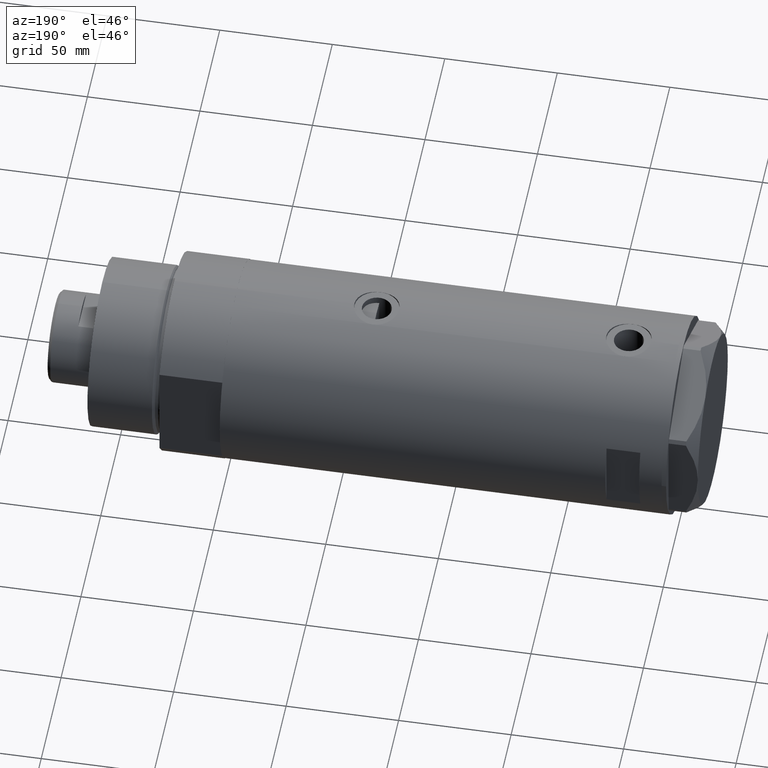
[diagram: clean part render]
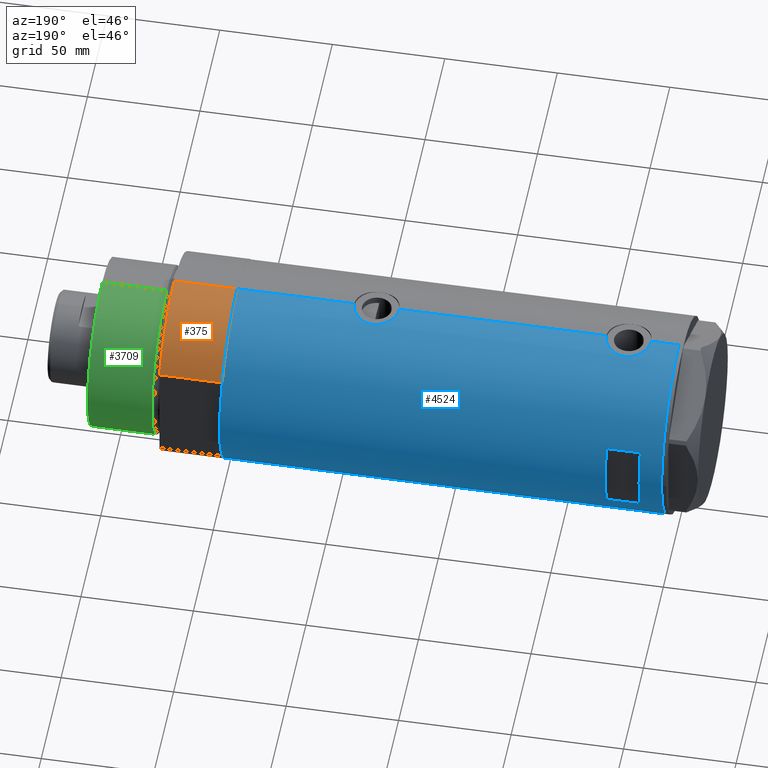
[diagram: same view with three faces highlighted in distinct colors, each labeled with its STEP entity id]
A machine part, auxiliary view with three faces highlighted in distinct colors.
Their STEP definitions:

[orange] entity #375 — the highlighted cylindrical surface (partial cylindrical patch) has radius 44 mm, axis along (-1, -0, 0).
#56 = ORIENTED_EDGE ( 'NONE', *, *, #748, .F. ) ;
#103 = CIRCLE ( 'NONE', #1887, 44.00000000000000000 ) ;
#125 = VERTEX_POINT ( 'NONE', #2113 ) ;
#271 = CIRCLE ( 'NONE', #3701, 44.00000000000000000 ) ;
#313 = LINE ( 'NONE', #2571, #2596 ) ;
#375 = ADVANCED_FACE ( 'NONE', ( #1312 ), #2411, .T. ) ;
#496 = DIRECTION ( 'NONE',  ( 0.000000000000000000, 0.000000000000000000, 1.000000000000000000 ) ) ;
#709 = CARTESIAN_POINT ( 'NONE',  ( -44.00000000000000000, 0.000000000000000000, 27.89999999999999858 ) ) ;
#748 = EDGE_CURVE ( 'NONE', #3027, #4065, #4559, .T. ) ;
#766 = CARTESIAN_POINT ( 'NONE',  ( 0.000000000000000000, 0.000000000000000000, 27.89999999999999858 ) ) ;
#1312 = FACE_OUTER_BOUND ( 'NONE', #2145, .T. ) ;
#1558 = AXIS2_PLACEMENT_3D ( 'NONE', #3574, #4705, #2827 ) ;
#1783 = EDGE_CURVE ( 'NONE', #3677, #125, #313, .T. ) ;
#1850 = DIRECTION ( 'NONE',  ( 1.000000000000000000, 0.000000000000000000, 0.000000000000000000 ) ) ;
#1887 = AXIS2_PLACEMENT_3D ( 'NONE', #3843, #496, #3874 ) ;
#1980 = CARTESIAN_POINT ( 'NONE',  ( -23.01629857296780557, 37.50000000000000000, 0.000000000000000000 ) ) ;
#2113 = CARTESIAN_POINT ( 'NONE',  ( -44.00000000000000000, 0.000000000000000000, 0.000000000000000000 ) ) ;
#2145 = EDGE_LOOP ( 'NONE', ( #3860, #2488, #56, #2441 ) ) ;
#2411 = CYLINDRICAL_SURFACE ( 'NONE', #1558, 44.00000000000000000 ) ;
#2441 = ORIENTED_EDGE ( 'NONE', *, *, #4647, .T. ) ;
#2488 = ORIENTED_EDGE ( 'NONE', *, *, #4479, .F. ) ;
#2571 = CARTESIAN_POINT ( 'NONE',  ( -44.00000000000000000, 0.000000000000000000, 27.89999999999999858 ) ) ;
#2596 = VECTOR ( 'NONE', #3287, 1000.000000000000000 ) ;
#2827 = DIRECTION ( 'NONE',  ( -1.000000000000000000, 0.000000000000000000, 0.000000000000000000 ) ) ;
#3027 = VERTEX_POINT ( 'NONE', #1980 ) ;
#3131 = DIRECTION ( 'NONE',  ( -0.000000000000000000, -0.000000000000000000, 1.000000000000000000 ) ) ;
#3287 = DIRECTION ( 'NONE',  ( -0.000000000000000000, -0.000000000000000000, -1.000000000000000000 ) ) ;
#3574 = CARTESIAN_POINT ( 'NONE',  ( 0.000000000000000000, 0.000000000000000000, 27.89999999999999858 ) ) ;
#3612 = VECTOR ( 'NONE', #3131, 1000.000000000000000 ) ;
#3677 = VERTEX_POINT ( 'NONE', #709 ) ;
#3701 = AXIS2_PLACEMENT_3D ( 'NONE', #766, #4841, #1850 ) ;
#3843 = CARTESIAN_POINT ( 'NONE',  ( 0.000000000000000000, 0.000000000000000000, 0.000000000000000000 ) ) ;
#3860 = ORIENTED_EDGE ( 'NONE', *, *, #1783, .F. ) ;
#3874 = DIRECTION ( 'NONE',  ( 1.000000000000000000, 0.000000000000000000, 0.000000000000000000 ) ) ;
#4065 = VERTEX_POINT ( 'NONE', #4523 ) ;
#4479 = EDGE_CURVE ( 'NONE', #4065, #3677, #271, .T. ) ;
#4523 = CARTESIAN_POINT ( 'NONE',  ( -23.01629857296780557, 37.50000000000000000, 27.89999999999999858 ) ) ;
#4559 = LINE ( 'NONE', #4590, #3612 ) ;
#4590 = CARTESIAN_POINT ( 'NONE',  ( -23.01629857296780557, 37.50000000000000000, 0.000000000000000000 ) ) ;
#4647 = EDGE_CURVE ( 'NONE', #3027, #125, #103, .T. ) ;
#4705 = DIRECTION ( 'NONE',  ( -0.000000000000000000, -0.000000000000000000, -1.000000000000000000 ) ) ;
#4841 = DIRECTION ( 'NONE',  ( 0.000000000000000000, 0.000000000000000000, 1.000000000000000000 ) ) ;

[blue] entity #4524 — the highlighted cylindrical surface (partial cylindrical patch) has radius 44 mm, axis along (-1, -0, 0).
#16 = CARTESIAN_POINT ( 'NONE',  ( 42.84863276153905787, 9.999733523508369970, -36.75869904750778261 ) ) ;
#27 = VECTOR ( 'NONE', #2814, 1000.000000000000000 ) ;
#31 = CARTESIAN_POINT ( 'NONE',  ( 42.99303682946563043, 9.360292926890506848, 72.36575779792798357 ) ) ;
#38 = DIRECTION ( 'NONE',  ( 0.000000000000000000, 0.000000000000000000, 1.000000000000000000 ) ) ;
#49 = CARTESIAN_POINT ( 'NONE',  ( 43.57657781376909156, 6.094873943596678778, 67.96525698880405741 ) ) ;
#51 = CARTESIAN_POINT ( 'NONE',  ( 43.92466059386730137, 2.593004216484785740, -45.76356669671356059 ) ) ;
#67 = CARTESIAN_POINT ( 'NONE',  ( 43.46520118248736253, 6.843279251446920064, -43.39898327212166151 ) ) ;
#72 = CARTESIAN_POINT ( 'NONE',  ( 44.00000000000000000, 0.000000000000000000, 98.20000000000000284 ) ) ;
#74 = EDGE_CURVE ( 'NONE', #2103, #167, #479, .T. ) ;
#83 = DIRECTION ( 'NONE',  ( 0.000000000000000000, 0.000000000000000000, 1.000000000000000000 ) ) ;
#88 = CARTESIAN_POINT ( 'NONE',  ( -43.91413175532568403, 2.773555030353458850, -56.28415761633254277 ) ) ;
#104 = DIRECTION ( 'NONE',  ( 0.000000000000000000, 0.000000000000000000, 1.000000000000000000 ) ) ;
#123 = CARTESIAN_POINT ( 'NONE',  ( -43.71901936021023971, 4.969830049220626655, 70.38832362301124590 ) ) ;
#150 = CARTESIAN_POINT ( 'NONE',  ( -43.88883895882799635, 3.130924084324101297, 68.78687544251856423 ) ) ;
#153 = DIRECTION ( 'NONE',  ( 0.000000000000000000, 0.000000000000000000, 1.000000000000000000 ) ) ;
#165 = CARTESIAN_POINT ( 'NONE',  ( -43.58362292239463187, 6.039157555656604615, -60.27736421551959722 ) ) ;
#167 = VERTEX_POINT ( 'NONE', #1855 ) ;
#171 = CARTESIAN_POINT ( 'NONE',  ( -43.91315028150560096, 2.769134003554746482, 68.59317380624599991 ) ) ;
#175 = CARTESIAN_POINT ( 'NONE',  ( 44.00000000000000000, 0.000000000000000000, -98.20000000000000284 ) ) ;
#206 = ORIENTED_EDGE ( 'NONE', *, *, #3816, .F. ) ;
#209 = CARTESIAN_POINT ( 'NONE',  ( -44.00000000000000000, 4.742435893011557518E-16, 80.45000000000001705 ) ) ;
#212 = CARTESIAN_POINT ( 'NONE',  ( 43.57805684119164624, 6.103282219787168117, -28.15183798352141054 ) ) ;
#222 = CARTESIAN_POINT ( 'NONE',  ( -43.92459115390705193, 2.581892149021001615, -67.59545827073348789 ) ) ;
#225 = CARTESIAN_POINT ( 'NONE',  ( -43.61859254253774054, 5.782454868881351295, 76.59786400894466851 ) ) ;
#233 = CARTESIAN_POINT ( 'NONE',  ( 43.27871541412904577, 7.937063204555981244, -30.00825002753968107 ) ) ;
#263 = CARTESIAN_POINT ( 'NONE',  ( -44.00000000000000000, 5.388445781982983516E-15, 67.95000000000001705 ) ) ;
#268 = VERTEX_POINT ( 'NONE', #263 ) ;
#296 = B_SPLINE_CURVE_WITH_KNOTS ( 'NONE', 3,
 ( #2361, #2330, #1917, #3832, #1939, #3446, #441, #88, #1549, #2759, #4587, #1575, #4272, #2390, #3523, #533, #1216, #4196, #165, #3025, #4532, #4169, #833, #811, #2288, #3791, #3597, #1367, #592, #3179, #2803, #2465, #3973, #614, #2036, #4684, #1339, #222, #634, #4737, #4017, #4759, #2855 ),
 .UNSPECIFIED., .F., .F.,
 ( 4, 2, 2, 2, 2, 2, 2, 2, 1, 2, 2, 2, 2, 2, 2, 2, 2, 2, 2, 2, 2, 4 ),
 ( 6.289190293195367850E-19, 0.001222818171749683351, 0.001834227257624524918, 0.002445636343499366702, 0.003668454515249052871, 0.004891272686998739475, 0.006114090858748426512, 0.006725499944623267862, 0.007336909030498110947, 0.007948318116372952297, 0.008559727202247794514, 0.009782545373997478949, 0.01100536354574716165, 0.01222818171749684782, 0.01283959080337170912, 0.01345099988924656868, 0.01467381806099629128, 0.01589663623274601215, 0.01650804531862087518, 0.01711945440449573475, 0.01834227257624545734, 0.01956509074799518341 ),
 .UNSPECIFIED. ) ;
#388 = CARTESIAN_POINT ( 'NONE',  ( 42.86370458161098185, 9.935807968041572735, -37.40904550429866049 ) ) ;
#395 = CARTESIAN_POINT ( 'NONE',  ( 43.94229162222111285, 2.275476993733910547, 66.15685535777693360 ) ) ;
#407 = LINE ( 'NONE', #3393, #3229 ) ;
#422 = ORIENTED_EDGE ( 'NONE', *, *, #3474, .F. ) ;
#424 = CARTESIAN_POINT ( 'NONE',  ( 44.00000000000002132, 0.6630566900259825536, 65.90000000000003411 ) ) ;
#429 = DIRECTION ( 'NONE',  ( 0.000000000000000000, 1.000000000000000000, -4.731064025391292434E-15 ) ) ;
#441 = CARTESIAN_POINT ( 'NONE',  ( -43.94507179847653333, 2.206027755801681867, -56.04868477718203224 ) ) ;
#453 = VERTEX_POINT ( 'NONE', #72 ) ;
#457 = VERTEX_POINT ( 'NONE', #1556 ) ;
#467 = CARTESIAN_POINT ( 'NONE',  ( 42.86396777580258544, 9.934664719553397916, 77.21576199026523568 ) ) ;
#479 = CIRCLE ( 'NONE', #4407, 44.00000000000000000 ) ;
#490 = CARTESIAN_POINT ( 'NONE',  ( 43.80640706382535399, 4.134078575915393294, -26.98867178437913239 ) ) ;
#494 = CARTESIAN_POINT ( 'NONE',  ( 43.61291203895921598, 5.829986172017926016, 67.76871289213170257 ) ) ;
#513 = CARTESIAN_POINT ( 'NONE',  ( -44.00000000000000000, 5.388445781992449847E-15, -68.15000000000001990 ) ) ;
#533 = CARTESIAN_POINT ( 'NONE',  ( -43.64122538274736485, 5.608286354294326870, -59.13388613036661212 ) ) ;
#537 = CARTESIAN_POINT ( 'NONE',  ( -43.55963022497231663, 6.210088036293396563, 75.01646163017424840 ) ) ;
#559 = VERTEX_POINT ( 'NONE', #4694 ) ;
#570 = DIRECTION ( 'NONE',  ( 0.000000000000000000, 0.000000000000000000, 1.000000000000000000 ) ) ;
#592 = CARTESIAN_POINT ( 'NONE',  ( -43.66575107734169592, 5.414026674167585540, -65.02935088037702371 ) ) ;
#599 = VERTEX_POINT ( 'NONE', #4427 ) ;
#614 = CARTESIAN_POINT ( 'NONE',  ( -43.83576802966639008, 3.813209221108468938, -66.86865490354712449 ) ) ;
#628 = DIRECTION ( 'NONE',  ( 0.000000000000000000, 0.000000000000000000, 1.000000000000000000 ) ) ;
#634 = CARTESIAN_POINT ( 'NONE',  ( -43.95549163632549750, 2.014511215452028825, -67.83058955704980519 ) ) ;
#650 = AXIS2_PLACEMENT_3D ( 'NONE', #3829, #83, #4550 ) ;
#714 = CARTESIAN_POINT ( 'NONE',  ( 43.71454618729809738, 5.012329428678962806, -27.44063025941690270 ) ) ;
#736 = CARTESIAN_POINT ( 'NONE',  ( 42.92624534982631701, 9.661626915142814909, -38.70008004144708735 ) ) ;
#742 = CIRCLE ( 'NONE', #650, 44.00000000000000000 ) ;
#777 = VERTEX_POINT ( 'NONE', #837 ) ;
#786 = CARTESIAN_POINT ( 'NONE',  ( 43.88561577393361546, 3.228056721358708359, 85.38721665727824472 ) ) ;
#788 = DIRECTION ( 'NONE',  ( 0.000000000000000000, 0.000000000000000000, 1.000000000000000000 ) ) ;
#811 = CARTESIAN_POINT ( 'NONE',  ( -43.55973179376098869, 6.209370339246239823, -62.72061767059870618 ) ) ;
#825 = ORIENTED_EDGE ( 'NONE', *, *, #4765, .T. ) ;
#833 = CARTESIAN_POINT ( 'NONE',  ( -43.55382423478827292, 6.250151562062090882, -62.30589529487338041 ) ) ;
#837 = CARTESIAN_POINT ( 'NONE',  ( 44.00000000000000000, -3.917104602093038540E-21, 85.90000000000000568 ) ) ;
#842 = CARTESIAN_POINT ( 'NONE',  ( 42.84863276153905787, 9.999733523508361088, 75.24130095249223871 ) ) ;
#863 = CARTESIAN_POINT ( 'NONE',  ( 44.00000000000000000, -3.917104602093038540E-21, 85.90000000000000568 ) ) ;
#886 = VECTOR ( 'NONE', #2386, 1000.000000000000000 ) ;
#905 = LINE ( 'NONE', #4269, #886 ) ;
#911 = CARTESIAN_POINT ( 'NONE',  ( -43.59867737633045692, 5.931302618788633296, 72.18750504970115855 ) ) ;
#950 = EDGE_CURVE ( 'NONE', #457, #4729, #1684, .T. ) ;
#992 = CARTESIAN_POINT ( 'NONE',  ( -44.00000000000000000, 5.388445916248353619E-15, -98.20000000000000284 ) ) ;
#1003 = ORIENTED_EDGE ( 'NONE', *, *, #74, .T. ) ;
#1033 = CARTESIAN_POINT ( 'NONE',  ( 43.35257020184194232, 7.523219862841651562, -29.50397445915864481 ) ) ;
#1071 = CARTESIAN_POINT ( 'NONE',  ( 44.00000000000002132, 0.3269372501759380545, -26.10000000000001918 ) ) ;
#1124 = VERTEX_POINT ( 'NONE', #4240 ) ;
#1130 = CARTESIAN_POINT ( 'NONE',  ( 43.94229162222111285, 2.275476993733913655, -45.84314464222307350 ) ) ;
#1148 = CARTESIAN_POINT ( 'NONE',  ( 43.04663170950395568, 9.110642017076083121, 71.76452497809607678 ) ) ;
#1155 = EDGE_CURVE ( 'NONE', #2542, #2304, #296, .T. ) ;
#1199 = CARTESIAN_POINT ( 'NONE',  ( 43.35294442506074120, 7.532526048221051873, 69.29064585508892549 ) ) ;
#1201 = DIRECTION ( 'NONE',  ( 1.000000000000000000, 0.000000000000000000, 0.000000000000000000 ) ) ;
#1216 = CARTESIAN_POINT ( 'NONE',  ( -43.61859254253774054, 5.782454868881357513, -59.50213599105533291 ) ) ;
#1224 = CARTESIAN_POINT ( 'NONE',  ( 43.71454618729810448, 5.012329428678959253, 84.55936974058313638 ) ) ;
#1243 = VERTEX_POINT ( 'NONE', #4296 ) ;
#1247 = FACE_BOUND ( 'NONE', #4567, .T. ) ;
#1259 = ORIENTED_EDGE ( 'NONE', *, *, #3674, .F. ) ;
#1271 = CARTESIAN_POINT ( 'NONE',  ( -43.99413512814552263, 0.8228129877960659311, 67.99091685674179075 ) ) ;
#1286 = LINE ( 'NONE', #3990, #1732 ) ;
#1311 = B_SPLINE_CURVE_WITH_KNOTS ( 'NONE', 3,
 ( #3484, #424, #3053, #395, #3819, #2263, #2685, #4519, #4225, #494, #49, #4566, #1607, #1199, #2294, #2711, #1869, #3749, #1148, #31, #4540, #1976, #1518, #3841, #842, #2658, #467, #4203, #2636, #3770, #2315, #4594, #1946, #3455, #1585, #3409, #1924, #4152, #4179, #3090, #1224, #2617, #4619, #786, #4132, #3380, #1901, #1535, #3031, #863 ),
 .UNSPECIFIED., .F., .F.,
 ( 4, 2, 2, 2, 2, 2, 2, 2, 2, 2, 2, 2, 2, 2, 2, 2, 2, 2, 2, 2, 2, 2, 2, 2, 4 ),
 ( 2.479523669370822448E-18, 0.001960456513248879339, 0.002940684769873313370, 0.003920913026497747401, 0.005881369539746631077, 0.006861597796371071180, 0.007841826052995510415, 0.009802282566244392356, 0.01078251082286883072, 0.01176273907949326909, 0.01274296733611770746, 0.01372319559274214583, 0.01568365210599106593, 0.01764410861923998430, 0.01960456513248890267, 0.02058479338911334278, 0.02156502164573777941, 0.02254524990236221951, 0.02352547815898665615, 0.02548593467223552941, 0.02646616292885996952, 0.02744639118548440615, 0.02940684769873327942, 0.03038707595535771258, 0.03136730421198213881 ),
 .UNSPECIFIED. ) ;
#1317 = CARTESIAN_POINT ( 'NONE',  ( -43.59995593514495482, 5.920088975424566691, 76.21417908691780951 ) ) ;
#1324 = LINE ( 'NONE', #1663, #27 ) ;
#1339 = CARTESIAN_POINT ( 'NONE',  ( -43.91315028150559385, 2.769134003554746037, -67.50682619375406546 ) ) ;
#1349 = CARTESIAN_POINT ( 'NONE',  ( -43.95446647384543581, 2.010857111636599637, 80.12124226363938817 ) ) ;
#1367 = CARTESIAN_POINT ( 'NONE',  ( -43.64133398152736021, 5.607447751852158824, -64.66786045012435125 ) ) ;
#1440 = LINE ( 'NONE', #3020, #4266 ) ;
#1467 = AXIS2_PLACEMENT_3D ( 'NONE', #2609, #3022, #3691 ) ;
#1494 = EDGE_CURVE ( 'NONE', #2542, #268, #407, .T. ) ;
#1511 = CARTESIAN_POINT ( 'NONE',  ( 43.98169492814103876, 1.310824514239766536, -26.18080219619315585 ) ) ;
#1518 = CARTESIAN_POINT ( 'NONE',  ( 42.90786968859021044, 9.742642423712171151, 73.62197703452876851 ) ) ;
#1535 = CARTESIAN_POINT ( 'NONE',  ( 43.99635668041008074, 0.6544833911834539997, 85.88400708477533385 ) ) ;
#1537 = EDGE_CURVE ( 'NONE', #1124, #559, #1286, .T. ) ;
#1549 = CARTESIAN_POINT ( 'NONE',  ( -43.88968326835893663, 3.132363423941624259, -56.47620767643520168 ) ) ;
#1556 = CARTESIAN_POINT ( 'NONE',  ( 44.00000000000000000, 2.836945177865671897E-15, -46.10000000000000853 ) ) ;
#1575 = CARTESIAN_POINT ( 'NONE',  ( -43.74833112883975872, 4.708208586952008723, -57.76949616491121731 ) ) ;
#1581 = CARTESIAN_POINT ( 'NONE',  ( 42.99303682946562333, 9.360292926890512177, -39.63424220207205195 ) ) ;
#1585 = CARTESIAN_POINT ( 'NONE',  ( 43.27871541412905287, 7.937063204555986573, 81.99174997246032603 ) ) ;
#1587 = CYLINDRICAL_SURFACE ( 'NONE', #4731, 44.00000000000000000 ) ;
#1604 = CARTESIAN_POINT ( 'NONE',  ( -43.71938389712227746, 4.966728892888062852, 78.01614452340872674 ) ) ;
#1607 = CARTESIAN_POINT ( 'NONE',  ( 43.46520118248735542, 6.843279251446916511, 68.60101672787835980 ) ) ;
#1610 = CARTESIAN_POINT ( 'NONE',  ( 43.07641822757289418, 8.969229373860574839, -31.66603764209828498 ) ) ;
#1625 = CARTESIAN_POINT ( 'NONE',  ( 15.96871942267132027, 40.99999999999999289, 88.20000000000000284 ) ) ;
#1628 = CARTESIAN_POINT ( 'NONE',  ( -43.66555354895124452, 5.415612800338318600, 77.32656357177557993 ) ) ;
#1662 = VECTOR ( 'NONE', #104, 1000.000000000000000 ) ;
#1663 = CARTESIAN_POINT ( 'NONE',  ( 15.96871942267132027, 40.99999999999999289, -98.20000000000000284 ) ) ;
#1684 = B_SPLINE_CURVE_WITH_KNOTS ( 'NONE', 3,
 ( #4608, #4082, #4774, #1130, #51, #4307, #3958, #3654, #4054, #4359, #2100, #4537, #67, #2588, #2982, #1943, #2958, #3746, #4591, #1581, #4468, #736, #3720, #388, #16, #2258, #3399, #1937, #3078, #3460, #1610, #3059, #4308, #4648, #233, #1033, #4361, #3565, #212, #3676, #714, #1827, #490, #3107, #2121, #2883, #1511, #3327, #1071, #2296 ),
 .UNSPECIFIED., .F., .F.,
 ( 4, 2, 2, 2, 2, 2, 2, 2, 2, 2, 2, 2, 2, 2, 2, 2, 2, 2, 2, 2, 2, 2, 2, 2, 4 ),
 ( 2.755634020688765633E-18, 0.001960456513248879772, 0.002940684769873318574, 0.003920913026497756942, 0.005881369539746635414, 0.006861597796371073782, 0.007841826052995512150, 0.009802282566244404499, 0.01078251082286885675, 0.01176273907949330899, 0.01274296733611776297, 0.01372319559274221522, 0.01568365210599110063, 0.01764410861923998777, 0.01960456513248886798, 0.02058479338911332196, 0.02156502164573776553, 0.02254524990236220564, 0.02352547815898664574, 0.02548593467223553288, 0.02646616292885997299, 0.02744639118548441656, 0.02940684769873329329, 0.03038707595535772993, 0.03136730421198216656 ),
 .UNSPECIFIED. ) ;
#1704 = CARTESIAN_POINT ( 'NONE',  ( -43.95549163632549750, 2.014511215452027937, 68.26941044295020333 ) ) ;
#1709 = CARTESIAN_POINT ( 'NONE',  ( -44.00000000000000711, 0.4135148353567996149, 80.45000000000001705 ) ) ;
#1732 = VECTOR ( 'NONE', #628, 1000.000000000000000 ) ;
#1796 = AXIS2_PLACEMENT_3D ( 'NONE', #4503, #2621, #429 ) ;
#1811 = VECTOR ( 'NONE', #570, 1000.000000000000000 ) ;
#1827 = CARTESIAN_POINT ( 'NONE',  ( 43.77712723341632284, 4.432620652875501222, -27.13004990240029457 ) ) ;
#1855 = CARTESIAN_POINT ( 'NONE',  ( -44.00000000000000000, 5.388445916248353619E-15, -98.20000000000000284 ) ) ;
#1869 = CARTESIAN_POINT ( 'NONE',  ( 43.13897484505560698, 8.663345277311673698, 70.89470399939492040 ) ) ;
#1901 = CARTESIAN_POINT ( 'NONE',  ( 43.98169492814103165, 1.310824514239766536, 85.81919780380685836 ) ) ;
#1917 = CARTESIAN_POINT ( 'NONE',  ( -43.99417607942193342, 0.8200150578638759624, -55.69063327483257808 ) ) ;
#1924 = CARTESIAN_POINT ( 'NONE',  ( 43.39051256276903246, 7.301963662770311281, 82.74024468212945749 ) ) ;
#1926 = CARTESIAN_POINT ( 'NONE',  ( 0.000000000000000000, 0.000000000000000000, -98.20000000000000284 ) ) ;
#1937 = CARTESIAN_POINT ( 'NONE',  ( 42.92259096922158790, 9.678247830257131312, -33.49994006971207483 ) ) ;
#1939 = CARTESIAN_POINT ( 'NONE',  ( -43.97068415157985299, 1.617901284326948907, -55.85954871699957636 ) ) ;
#1943 = CARTESIAN_POINT ( 'NONE',  ( 43.17277162440355198, 8.493905080221264114, -41.38787035108497037 ) ) ;
#1946 = CARTESIAN_POINT ( 'NONE',  ( 43.17306590853067405, 8.492365194390513849, 81.19012532693457729 ) ) ;
#1971 = CARTESIAN_POINT ( 'NONE',  ( -43.67863969133946966, 5.309394106110037370, 77.50379296502549664 ) ) ;
#1976 = CARTESIAN_POINT ( 'NONE',  ( 42.92624534982631701, 9.661626915142809580, 73.29991995855291975 ) ) ;
#2009 = ORIENTED_EDGE ( 'NONE', *, *, #4780, .F. ) ;
#2036 = CARTESIAN_POINT ( 'NONE',  ( -43.87596296923811678, 3.305851531861740522, -67.20803585876262787 ) ) ;
#2072 = CARTESIAN_POINT ( 'NONE',  ( -43.55973179376100290, 6.209370339246232717, 73.37938232940132366 ) ) ;
#2078 = CARTESIAN_POINT ( 'NONE',  ( -43.99417607942194763, 0.8200150578638748522, 80.40936672516741623 ) ) ;
#2100 = CARTESIAN_POINT ( 'NONE',  ( 43.57657781376907025, 6.094873943596692101, -44.03474301119596390 ) ) ;
#2103 = VERTEX_POINT ( 'NONE', #2470 ) ;
#2121 = CARTESIAN_POINT ( 'NONE',  ( 43.92756755766649235, 2.604528169608121946, -26.42286588097656974 ) ) ;
#2125 = VECTOR ( 'NONE', #153, 1000.000000000000000 ) ;
#2136 = CIRCLE ( 'NONE', #1796, 44.00000000000000000 ) ;
#2181 = CARTESIAN_POINT ( 'NONE',  ( -44.00000000000000000, 4.742435893011557518E-16, 80.45000000000001705 ) ) ;
#2186 = ORIENTED_EDGE ( 'NONE', *, *, #3882, .T. ) ;
#2236 = B_SPLINE_CURVE_WITH_KNOTS ( 'NONE', 3,
 ( #209, #1709, #2078, #3208, #4716, #1349, #4357, #3139, #3507, #4644, #2765, #4688, #1604, #1971, #1628, #3132, #225, #1317, #3581, #3480, #537, #3503, #3162, #2072, #4667, #911, #2808, #3837, #2334, #4616, #123, #4637, #3106, #4323, #4277, #150, #171, #2447, #1704, #3951, #1271, #4300, #3183 ),
 .UNSPECIFIED., .F., .F.,
 ( 4, 2, 2, 2, 2, 2, 2, 2, 1, 2, 2, 2, 2, 2, 2, 2, 2, 2, 2, 2, 2, 4 ),
 ( 4.607873388256435088E-19, 0.001222818171749670340, 0.001834227257624505619, 0.002445636343499341114, 0.003668454515249027284, 0.004891272686998713454, 0.006114090858748398756, 0.006725499944623259188, 0.007336909030498119620, 0.007948318116372978318, 0.008559727202247837882, 0.009782545373997518848, 0.01100536354574719981, 0.01222818171749687904, 0.01283959080337173861, 0.01345099988924659644, 0.01467381806099631383, 0.01589663623274603296, 0.01650804531862088906, 0.01711945440449574862, 0.01834227257624546428, 0.01956509074799517994 ),
 .UNSPECIFIED. ) ;
#2258 = CARTESIAN_POINT ( 'NONE',  ( 42.84850876528982155, 10.00026482975808051, -35.44941694529577347 ) ) ;
#2263 = CARTESIAN_POINT ( 'NONE',  ( 43.88297407487991109, 3.222431612395379119, 66.42771797970659975 ) ) ;
#2288 = CARTESIAN_POINT ( 'NONE',  ( -43.58221825186232223, 6.049526113783029402, -63.52262970817960763 ) ) ;
#2294 = CARTESIAN_POINT ( 'NONE',  ( 43.27822890220284791, 7.945655169171516263, 69.79274616710709722 ) ) ;
#2296 = CARTESIAN_POINT ( 'NONE',  ( 44.00000000000000000, -3.917142467416489149E-21, -26.10000000000000497 ) ) ;
#2304 = VERTEX_POINT ( 'NONE', #513 ) ;
#2315 = CARTESIAN_POINT ( 'NONE',  ( 43.07641822757289418, 8.969229373860565957, 80.33396235790173989 ) ) ;
#2330 = CARTESIAN_POINT ( 'NONE',  ( -44.00000000000000000, 0.4135148353567994484, -55.64999999999999858 ) ) ;
#2334 = CARTESIAN_POINT ( 'NONE',  ( -43.66575107734168171, 5.414026674167576658, 71.07064911962299902 ) ) ;
#2361 = CARTESIAN_POINT ( 'NONE',  ( -44.00000000000000000, 6.472851849715296073E-16, -55.65000000000000568 ) ) ;
#2386 = DIRECTION ( 'NONE',  ( 0.000000000000000000, 0.000000000000000000, 1.000000000000000000 ) ) ;
#2390 = CARTESIAN_POINT ( 'NONE',  ( -43.67863969133946256, 5.309394106110041811, -58.59620703497452610 ) ) ;
#2392 = VERTEX_POINT ( 'NONE', #1625 ) ;
#2424 = LINE ( 'NONE', #992, #1811 ) ;
#2447 = CARTESIAN_POINT ( 'NONE',  ( -43.92459115390705193, 2.581892149020998950, 68.50454172926654905 ) ) ;
#2454 = ORIENTED_EDGE ( 'NONE', *, *, #1537, .F. ) ;
#2465 = CARTESIAN_POINT ( 'NONE',  ( -43.74805001749253819, 4.711035428619393173, -66.02776064125799849 ) ) ;
#2470 = CARTESIAN_POINT ( 'NONE',  ( 44.00000000000000000, 0.000000000000000000, -98.20000000000000284 ) ) ;
#2533 = EDGE_CURVE ( 'NONE', #2103, #457, #1440, .T. ) ;
#2542 = VERTEX_POINT ( 'NONE', #4144 ) ;
#2588 = CARTESIAN_POINT ( 'NONE',  ( 43.35294442506074120, 7.532526048221052761, -42.70935414491112425 ) ) ;
#2609 = CARTESIAN_POINT ( 'NONE',  ( 0.000000000000000000, 0.000000000000000000, 88.20000000000000284 ) ) ;
#2617 = CARTESIAN_POINT ( 'NONE',  ( 43.77712723341632994, 4.432620652875498557, 84.86995009759974096 ) ) ;
#2621 = DIRECTION ( 'NONE',  ( 0.000000000000000000, 4.625929269271481378E-15, 1.000000000000000000 ) ) ;
#2636 = CARTESIAN_POINT ( 'NONE',  ( 42.96547725528407824, 9.488625330801083280, 79.12450347211071744 ) ) ;
#2658 = CARTESIAN_POINT ( 'NONE',  ( 42.84850876528983576, 10.00026482975808229, 76.55058305470424784 ) ) ;
#2685 = CARTESIAN_POINT ( 'NONE',  ( 43.85884410404901246, 3.534688330930384925, 66.53980191249667087 ) ) ;
#2711 = CARTESIAN_POINT ( 'NONE',  ( 43.17277162440354488, 8.493905080221262338, 70.61212964891505806 ) ) ;
#2750 = ORIENTED_EDGE ( 'NONE', *, *, #950, .F. ) ;
#2759 = CARTESIAN_POINT ( 'NONE',  ( -43.83593455218809964, 3.811409182021281428, -56.92985072296500704 ) ) ;
#2765 = CARTESIAN_POINT ( 'NONE',  ( -43.80646232387288563, 4.132500855894024383, 78.90645585403358098 ) ) ;
#2803 = CARTESIAN_POINT ( 'NONE',  ( -43.71901936021025392, 4.969830049220633761, -65.71167637698874842 ) ) ;
#2808 = CARTESIAN_POINT ( 'NONE',  ( -43.62981559643959883, 5.696090409300652802, 71.61948634585476725 ) ) ;
#2812 = LINE ( 'NONE', #175, #2125 ) ;
#2814 = DIRECTION ( 'NONE',  ( -0.000000000000000000, -0.000000000000000000, -1.000000000000000000 ) ) ;
#2855 = CARTESIAN_POINT ( 'NONE',  ( -44.00000000000000000, 5.388445781992449847E-15, -68.15000000000001990 ) ) ;
#2883 = CARTESIAN_POINT ( 'NONE',  ( 43.97062489912107708, 1.639461988184801156, -26.22985373334014625 ) ) ;
#2931 = DIRECTION ( 'NONE',  ( 0.000000000000000000, 0.000000000000000000, 1.000000000000000000 ) ) ;
#2958 = CARTESIAN_POINT ( 'NONE',  ( 43.13897484505559987, 8.663345277311671921, -41.10529600060514355 ) ) ;
#2982 = CARTESIAN_POINT ( 'NONE',  ( 43.27822890220284080, 7.945655169171516263, -42.20725383289290278 ) ) ;
#3020 = CARTESIAN_POINT ( 'NONE',  ( 44.00000000000000000, 0.000000000000000000, -98.20000000000000284 ) ) ;
#3022 = DIRECTION ( 'NONE',  ( -0.000000000000000000, -0.000000000000000000, -1.000000000000000000 ) ) ;
#3023 = EDGE_CURVE ( 'NONE', #1243, #1124, #2136, .T. ) ;
#3025 = CARTESIAN_POINT ( 'NONE',  ( -43.57657963456318839, 6.089610171536609329, -60.47821460419189066 ) ) ;
#3031 = CARTESIAN_POINT ( 'NONE',  ( 44.00000000000000711, 0.3269372501759374994, 85.90000000000001990 ) ) ;
#3053 = CARTESIAN_POINT ( 'NONE',  ( 43.98503110884232115, 1.314607393679875669, 65.96529015654452621 ) ) ;
#3059 = CARTESIAN_POINT ( 'NONE',  ( 43.13962074468733476, 8.660138848900677644, -31.08910258836065665 ) ) ;
#3078 = CARTESIAN_POINT ( 'NONE',  ( 42.96547725528407113, 9.488625330801086832, -32.87549652788927546 ) ) ;
#3090 = CARTESIAN_POINT ( 'NONE',  ( 43.68141895191831736, 5.292250119194734204, 84.39104952285195793 ) ) ;
#3106 = CARTESIAN_POINT ( 'NONE',  ( -43.80687348212602217, 4.128385987736833407, 69.48951256689038303 ) ) ;
#3107 = CARTESIAN_POINT ( 'NONE',  ( 43.88561577393361546, 3.228056721358710135, -26.61278334272174817 ) ) ;
#3132 = CARTESIAN_POINT ( 'NONE',  ( -43.64122538274737195, 5.608286354294323317, 76.96611386963340351 ) ) ;
#3139 = CARTESIAN_POINT ( 'NONE',  ( -43.91413175532567692, 2.773555030353453965, 79.81584238366747286 ) ) ;
#3151 = CARTESIAN_POINT ( 'NONE',  ( 44.00000000000000000, -2.552687571866728611E-15, 65.90000000000001990 ) ) ;
#3162 = CARTESIAN_POINT ( 'NONE',  ( -43.55382423478827292, 6.250151562062086441, 73.79410470512661391 ) ) ;
#3179 = CARTESIAN_POINT ( 'NONE',  ( -43.67867890111968876, 5.309046579850795311, -65.20422779076025677 ) ) ;
#3183 = CARTESIAN_POINT ( 'NONE',  ( -44.00000000000000000, 5.388445781982983516E-15, 67.95000000000001705 ) ) ;
#3208 = CARTESIAN_POINT ( 'NONE',  ( -43.97754480947185129, 1.419697478855583617, 80.29003276052073090 ) ) ;
#3229 = VECTOR ( 'NONE', #38, 1000.000000000000000 ) ;
#3231 = ORIENTED_EDGE ( 'NONE', *, *, #3023, .F. ) ;
#3306 = ORIENTED_EDGE ( 'NONE', *, *, #4753, .F. ) ;
#3327 = CARTESIAN_POINT ( 'NONE',  ( 43.99635668041006653, 0.6544833911834557760, -26.11599291522469457 ) ) ;
#3380 = CARTESIAN_POINT ( 'NONE',  ( 43.97062489912108418, 1.639461988184795604, 85.77014626665985020 ) ) ;
#3393 = CARTESIAN_POINT ( 'NONE',  ( -44.00000000000000000, 5.388445916248353619E-15, -98.20000000000000284 ) ) ;
#3399 = CARTESIAN_POINT ( 'NONE',  ( 42.86396777580258544, 9.934664719553399692, -34.78423800973479274 ) ) ;
#3409 = CARTESIAN_POINT ( 'NONE',  ( 43.35257020184194232, 7.523219862841656891, 82.49602554084137296 ) ) ;
#3432 = CARTESIAN_POINT ( 'NONE',  ( 44.00000000000000000, 0.000000000000000000, -98.20000000000000284 ) ) ;
#3446 = CARTESIAN_POINT ( 'NONE',  ( -43.95446647384544292, 2.010857111636600969, -55.97875773636064878 ) ) ;
#3455 = CARTESIAN_POINT ( 'NONE',  ( 43.24261242176996234, 8.130827601038829400, 81.73055186854172405 ) ) ;
#3460 = CARTESIAN_POINT ( 'NONE',  ( 43.04652664061919864, 9.111152824375430725, -31.96541990785411969 ) ) ;
#3466 = CARTESIAN_POINT ( 'NONE',  ( 0.000000000000000000, 0.000000000000000000, -98.20000000000000284 ) ) ;
#3474 = EDGE_CURVE ( 'NONE', #3808, #777, #1311, .T. ) ;
#3480 = CARTESIAN_POINT ( 'NONE',  ( -43.57657963456318839, 6.089610171536606664, 75.62178539580813208 ) ) ;
#3484 = CARTESIAN_POINT ( 'NONE',  ( 44.00000000000000000, -2.552687571866728611E-15, 65.90000000000001990 ) ) ;
#3503 = CARTESIAN_POINT ( 'NONE',  ( -43.55386785759471024, 6.249847571481740971, 74.61054947617955690 ) ) ;
#3507 = CARTESIAN_POINT ( 'NONE',  ( -43.88968326835893663, 3.132363423941621150, 79.62379232356479974 ) ) ;
#3523 = CARTESIAN_POINT ( 'NONE',  ( -43.66555354895123031, 5.415612800338319488, -58.77343642822444281 ) ) ;
#3565 = CARTESIAN_POINT ( 'NONE',  ( 43.50382207688846847, 6.605942769308304818, -28.56395311161779915 ) ) ;
#3581 = CARTESIAN_POINT ( 'NONE',  ( -43.58362292239462477, 6.039157555656595733, 75.82263578448043972 ) ) ;
#3591 = EDGE_CURVE ( 'NONE', #4729, #3808, #2812, .T. ) ;
#3597 = CARTESIAN_POINT ( 'NONE',  ( -43.62981559643959883, 5.696090409300659019, -64.48051365414528391 ) ) ;
#3654 = CARTESIAN_POINT ( 'NONE',  ( 43.77939001959705223, 4.442287752090387620, -45.08306177559163075 ) ) ;
#3674 = EDGE_CURVE ( 'NONE', #559, #2392, #4018, .T. ) ;
#3676 = CARTESIAN_POINT ( 'NONE',  ( 43.68141895191831026, 5.292250119194736868, -27.60895047714807049 ) ) ;
#3691 = DIRECTION ( 'NONE',  ( 1.000000000000000000, -8.881784197001252323E-16, 0.000000000000000000 ) ) ;
#3720 = CARTESIAN_POINT ( 'NONE',  ( 42.90786968859021044, 9.742642423712174704, -38.37802296547129544 ) ) ;
#3745 = EDGE_LOOP ( 'NONE', ( #1003, #825, #4000, #4279, #2009, #2186, #206, #4529, #422, #4325, #2750, #3754 ) ) ;
#3746 = CARTESIAN_POINT ( 'NONE',  ( 43.07598348983508174, 8.971306953823013686, -40.52969423187187914 ) ) ;
#3749 = CARTESIAN_POINT ( 'NONE',  ( 43.07598348983507464, 8.971306953823011909, 71.47030576812815639 ) ) ;
#3754 = ORIENTED_EDGE ( 'NONE', *, *, #2533, .F. ) ;
#3770 = CARTESIAN_POINT ( 'NONE',  ( 43.04652664061922707, 9.111152824375430725, 80.03458009214594426 ) ) ;
#3791 = CARTESIAN_POINT ( 'NONE',  ( -43.59867737633045692, 5.931302618788640402, -63.91249495029889260 ) ) ;
#3808 = VERTEX_POINT ( 'NONE', #3151 ) ;
#3816 = EDGE_CURVE ( 'NONE', #453, #599, #742, .T. ) ;
#3819 = CARTESIAN_POINT ( 'NONE',  ( 43.92466059386729427, 2.593004216484783964, 66.23643330328646073 ) ) ;
#3820 = FACE_OUTER_BOUND ( 'NONE', #3745, .T. ) ;
#3829 = CARTESIAN_POINT ( 'NONE',  ( 0.000000000000000000, 0.000000000000000000, 98.20000000000000284 ) ) ;
#3832 = CARTESIAN_POINT ( 'NONE',  ( -43.97754480947186551, 1.419697478855586059, -55.80996723947924210 ) ) ;
#3837 = CARTESIAN_POINT ( 'NONE',  ( -43.64133398152736021, 5.607447751852152606, 71.43213954987568570 ) ) ;
#3841 = CARTESIAN_POINT ( 'NONE',  ( 42.86370458161099606, 9.935807968041567406, 74.59095449570133951 ) ) ;
#3882 = EDGE_CURVE ( 'NONE', #4085, #599, #905, .T. ) ;
#3951 = CARTESIAN_POINT ( 'NONE',  ( -43.97181775256600389, 1.624866278047415680, 68.15107081614905837 ) ) ;
#3958 = CARTESIAN_POINT ( 'NONE',  ( 43.85884410404901246, 3.534688330930388922, -45.46019808750336466 ) ) ;
#3973 = CARTESIAN_POINT ( 'NONE',  ( -43.80687348212602217, 4.128385987736840512, -66.61048743310966813 ) ) ;
#3990 = CARTESIAN_POINT ( 'NONE',  ( -15.96871942267132027, 40.99999999999999289, -98.20000000000000284 ) ) ;
#4000 = ORIENTED_EDGE ( 'NONE', *, *, #1155, .F. ) ;
#4017 = CARTESIAN_POINT ( 'NONE',  ( -43.99413512814552263, 0.8228129877960710381, -68.10908314325826041 ) ) ;
#4018 = CIRCLE ( 'NONE', #1467, 44.00000000000000000 ) ;
#4054 = CARTESIAN_POINT ( 'NONE',  ( 43.71659050864931828, 5.015880325000608764, -44.77566825963823050 ) ) ;
#4082 = CARTESIAN_POINT ( 'NONE',  ( 44.00000000000002132, 0.6630566900259828866, -46.10000000000002984 ) ) ;
#4085 = VERTEX_POINT ( 'NONE', #2181 ) ;
#4118 = DIRECTION ( 'NONE',  ( 0.000000000000000000, 0.000000000000000000, 1.000000000000000000 ) ) ;
#4132 = CARTESIAN_POINT ( 'NONE',  ( 43.92756755766649235, 2.604528169608113064, 85.57713411902345513 ) ) ;
#4144 = CARTESIAN_POINT ( 'NONE',  ( -44.00000000000000000, 6.472851849715296073E-16, -55.65000000000000568 ) ) ;
#4152 = CARTESIAN_POINT ( 'NONE',  ( 43.50382207688846847, 6.605942769308303930, 83.43604688838220795 ) ) ;
#4169 = CARTESIAN_POINT ( 'NONE',  ( -43.55386785759470314, 6.249847571481745412, -61.48945052382045873 ) ) ;
#4179 = CARTESIAN_POINT ( 'NONE',  ( 43.57805684119164624, 6.103282219787165452, 83.84816201647861078 ) ) ;
#4181 = LINE ( 'NONE', #3432, #1662 ) ;
#4196 = CARTESIAN_POINT ( 'NONE',  ( -43.59995593514495482, 5.920088975424572908, -59.88582091308221322 ) ) ;
#4203 = CARTESIAN_POINT ( 'NONE',  ( 42.92259096922160211, 9.678247830257127760, 78.50005993028796070 ) ) ;
#4225 = CARTESIAN_POINT ( 'NONE',  ( 43.71659050864931828, 5.015880325000608764, 67.22433174036180503 ) ) ;
#4240 = CARTESIAN_POINT ( 'NONE',  ( -15.96871942267132027, 40.99999999999999289, 73.20000000000000284 ) ) ;
#4266 = VECTOR ( 'NONE', #2931, 1000.000000000000000 ) ;
#4269 = CARTESIAN_POINT ( 'NONE',  ( -44.00000000000000000, 5.388445916248353619E-15, -98.20000000000000284 ) ) ;
#4272 = CARTESIAN_POINT ( 'NONE',  ( -43.71938389712227035, 4.966728892888067293, -58.08385547659131021 ) ) ;
#4277 = CARTESIAN_POINT ( 'NONE',  ( -43.87596296923810968, 3.305851531861728976, 68.89196414123739487 ) ) ;
#4279 = ORIENTED_EDGE ( 'NONE', *, *, #1494, .T. ) ;
#4296 = CARTESIAN_POINT ( 'NONE',  ( 15.96871942267132027, 40.99999999999999289, 73.20000000000000284 ) ) ;
#4300 = CARTESIAN_POINT ( 'NONE',  ( -43.99999999999997158, 0.4081702738789203533, 67.94999999999997442 ) ) ;
#4307 = CARTESIAN_POINT ( 'NONE',  ( 43.88297407487991109, 3.222431612395382228, -45.57228202029342157 ) ) ;
#4308 = CARTESIAN_POINT ( 'NONE',  ( 43.17306590853065273, 8.492365194390522731, -30.80987467306545113 ) ) ;
#4323 = CARTESIAN_POINT ( 'NONE',  ( -43.83576802966640429, 3.813209221108459168, 69.23134509645289825 ) ) ;
#4325 = ORIENTED_EDGE ( 'NONE', *, *, #3591, .F. ) ;
#4328 = CARTESIAN_POINT ( 'NONE',  ( 44.00000000000000000, -3.917142467416489149E-21, -26.10000000000000497 ) ) ;
#4357 = CARTESIAN_POINT ( 'NONE',  ( -43.94507179847653333, 2.206027755801677870, 80.05131522281796208 ) ) ;
#4359 = CARTESIAN_POINT ( 'NONE',  ( 43.61291203895919466, 5.829986172017925128, -44.23128710786829743 ) ) ;
#4361 = CARTESIAN_POINT ( 'NONE',  ( 43.39051256276903246, 7.301963662770314833, -29.25975531787057804 ) ) ;
#4407 = AXIS2_PLACEMENT_3D ( 'NONE', #3466, #4118, #4483 ) ;
#4427 = CARTESIAN_POINT ( 'NONE',  ( -44.00000000000000000, 5.388445916248353619E-15, 98.20000000000000284 ) ) ;
#4468 = CARTESIAN_POINT ( 'NONE',  ( 42.96879251999280314, 9.470609476412120031, -39.32722899941056482 ) ) ;
#4483 = DIRECTION ( 'NONE',  ( 1.000000000000000000, 0.000000000000000000, 0.000000000000000000 ) ) ;
#4503 = CARTESIAN_POINT ( 'NONE',  ( 0.000000000000000000, 0.000000000000000000, 73.20000000000018758 ) ) ;
#4519 = CARTESIAN_POINT ( 'NONE',  ( 43.77939001959705223, 4.442287752090382291, 66.91693822440836925 ) ) ;
#4524 = ADVANCED_FACE ( 'NONE', ( #1247, #3820 ), #1587, .T. ) ;
#4529 = ORIENTED_EDGE ( 'NONE', *, *, #4544, .F. ) ;
#4532 = CARTESIAN_POINT ( 'NONE',  ( -43.55963022497232373, 6.210088036293401004, -61.08353836982577434 ) ) ;
#4537 = CARTESIAN_POINT ( 'NONE',  ( 43.50265731352001097, 6.601850423195605444, -43.61819167298953914 ) ) ;
#4540 = CARTESIAN_POINT ( 'NONE',  ( 42.96879251999280314, 9.470609476412112926, 72.67277100058944939 ) ) ;
#4544 = EDGE_CURVE ( 'NONE', #777, #453, #4181, .T. ) ;
#4550 = DIRECTION ( 'NONE',  ( 1.000000000000000000, 0.000000000000000000, 0.000000000000000000 ) ) ;
#4566 = CARTESIAN_POINT ( 'NONE',  ( 43.50265731352001808, 6.601850423195591233, 68.38180832701048928 ) ) ;
#4567 = EDGE_LOOP ( 'NONE', ( #2454, #3231, #3306, #1259 ) ) ;
#4587 = CARTESIAN_POINT ( 'NONE',  ( -43.80646232387289274, 4.132500855894034153, -57.19354414596645597 ) ) ;
#4591 = CARTESIAN_POINT ( 'NONE',  ( 43.04663170950394857, 9.110642017076081345, -40.23547502190394454 ) ) ;
#4594 = CARTESIAN_POINT ( 'NONE',  ( 43.13962074468734897, 8.660138848900670538, 80.91089741163936822 ) ) ;
#4608 = CARTESIAN_POINT ( 'NONE',  ( 44.00000000000000000, 2.836945177865671897E-15, -46.10000000000000853 ) ) ;
#4616 = CARTESIAN_POINT ( 'NONE',  ( -43.67867890111967455, 5.309046579850785541, 70.89577220923978018 ) ) ;
#4619 = CARTESIAN_POINT ( 'NONE',  ( 43.80640706382536109, 4.134078575915387965, 85.01132821562090669 ) ) ;
#4637 = CARTESIAN_POINT ( 'NONE',  ( -43.74805001749254529, 4.711035428619386956, 70.07223935874202425 ) ) ;
#4644 = CARTESIAN_POINT ( 'NONE',  ( -43.83593455218809254, 3.811409182021277431, 79.17014927703502281 ) ) ;
#4648 = CARTESIAN_POINT ( 'NONE',  ( 43.24261242176996234, 8.130827601038834729, -30.26944813145831148 ) ) ;
#4667 = CARTESIAN_POINT ( 'NONE',  ( -43.58221825186232223, 6.049526113783018744, 72.57737029182041510 ) ) ;
#4684 = CARTESIAN_POINT ( 'NONE',  ( -43.88883895882800346, 3.130924084324098633, -67.31312455748147272 ) ) ;
#4688 = CARTESIAN_POINT ( 'NONE',  ( -43.74833112883977293, 4.708208586952001617, 78.33050383508880543 ) ) ;
#4694 = CARTESIAN_POINT ( 'NONE',  ( -15.96871942267132027, 40.99999999999999289, 88.20000000000000284 ) ) ;
#4716 = CARTESIAN_POINT ( 'NONE',  ( -43.97068415157983878, 1.617901284326946909, 80.24045128300046770 ) ) ;
#4729 = VERTEX_POINT ( 'NONE', #4328 ) ;
#4731 = AXIS2_PLACEMENT_3D ( 'NONE', #1926, #788, #1201 ) ;
#4737 = CARTESIAN_POINT ( 'NONE',  ( -43.97181775256600389, 1.624866278047417012, -67.94892918385096436 ) ) ;
#4753 = EDGE_CURVE ( 'NONE', #2392, #1243, #1324, .T. ) ;
#4759 = CARTESIAN_POINT ( 'NONE',  ( -44.00000000000000711, 0.4081702738789189655, -68.15000000000003411 ) ) ;
#4765 = EDGE_CURVE ( 'NONE', #167, #2304, #2424, .T. ) ;
#4774 = CARTESIAN_POINT ( 'NONE',  ( 43.98503110884232825, 1.314607393679877445, -46.03470984345550221 ) ) ;
#4780 = EDGE_CURVE ( 'NONE', #4085, #268, #2236, .T. ) ;

[green] entity #3709 — the highlighted cylindrical surface (partial cylindrical patch) has radius 37.5 mm, axis along (-1, -0, 0).
#14 = FACE_OUTER_BOUND ( 'NONE', #701, .T. ) ;
#413 = EDGE_CURVE ( 'NONE', #3330, #1993, #3520, .T. ) ;
#415 = AXIS2_PLACEMENT_3D ( 'NONE', #4290, #3935, #4750 ) ;
#673 = ORIENTED_EDGE ( 'NONE', *, *, #2298, .F. ) ;
#701 = EDGE_LOOP ( 'NONE', ( #673, #4609, #2567, #4740 ) ) ;
#735 = DIRECTION ( 'NONE',  ( -0.000000000000000000, -0.000000000000000000, -1.000000000000000000 ) ) ;
#1018 = DIRECTION ( 'NONE',  ( -0.000000000000000000, -0.000000000000000000, -1.000000000000000000 ) ) ;
#1292 = DIRECTION ( 'NONE',  ( 1.000000000000000000, 0.000000000000000000, 0.000000000000000000 ) ) ;
#1577 = DIRECTION ( 'NONE',  ( 0.000000000000000000, 0.000000000000000000, 1.000000000000000000 ) ) ;
#1627 = EDGE_CURVE ( 'NONE', #2239, #1993, #3066, .T. ) ;
#1645 = CARTESIAN_POINT ( 'NONE',  ( -37.50000000000000711, 0.000000000000000000, 59.89999999999999147 ) ) ;
#1746 = EDGE_CURVE ( 'NONE', #3824, #2239, #3050, .T. ) ;
#1768 = AXIS2_PLACEMENT_3D ( 'NONE', #3398, #735, #4467 ) ;
#1967 = CARTESIAN_POINT ( 'NONE',  ( 0.000000000000000000, 0.000000000000000000, 59.89999999999999147 ) ) ;
#1993 = VERTEX_POINT ( 'NONE', #3870 ) ;
#2159 = CARTESIAN_POINT ( 'NONE',  ( 37.50000000000000711, 4.592425496802575156E-15, 59.89999999999999147 ) ) ;
#2239 = VERTEX_POINT ( 'NONE', #3026 ) ;
#2298 = EDGE_CURVE ( 'NONE', #3824, #3330, #4023, .T. ) ;
#2567 = ORIENTED_EDGE ( 'NONE', *, *, #1627, .T. ) ;
#2953 = CYLINDRICAL_SURFACE ( 'NONE', #1768, 37.50000000000000711 ) ;
#2975 = VECTOR ( 'NONE', #4766, 1000.000000000000000 ) ;
#3026 = CARTESIAN_POINT ( 'NONE',  ( 37.50000000000000711, 4.592425496802575156E-15, 31.27384048104054415 ) ) ;
#3050 = LINE ( 'NONE', #2159, #3940 ) ;
#3066 = CIRCLE ( 'NONE', #415, 37.50000000000000711 ) ;
#3330 = VERTEX_POINT ( 'NONE', #4405 ) ;
#3398 = CARTESIAN_POINT ( 'NONE',  ( 0.000000000000000000, 0.000000000000000000, 59.89999999999999147 ) ) ;
#3520 = LINE ( 'NONE', #1645, #2975 ) ;
#3709 = ADVANCED_FACE ( 'NONE', ( #14 ), #2953, .T. ) ;
#3774 = AXIS2_PLACEMENT_3D ( 'NONE', #1967, #1577, #1292 ) ;
#3824 = VERTEX_POINT ( 'NONE', #3886 ) ;
#3870 = CARTESIAN_POINT ( 'NONE',  ( -37.50000000000000711, 0.000000000000000000, 31.27384048104054415 ) ) ;
#3886 = CARTESIAN_POINT ( 'NONE',  ( 37.50000000000000711, 4.592425496802575156E-15, 59.89999999999999147 ) ) ;
#3935 = DIRECTION ( 'NONE',  ( -0.000000000000000000, -0.000000000000000000, 1.000000000000000000 ) ) ;
#3940 = VECTOR ( 'NONE', #1018, 1000.000000000000000 ) ;
#4023 = CIRCLE ( 'NONE', #3774, 37.50000000000000711 ) ;
#4290 = CARTESIAN_POINT ( 'NONE',  ( 0.000000000000000000, 0.000000000000000000, 31.27384048104054415 ) ) ;
#4405 = CARTESIAN_POINT ( 'NONE',  ( -37.50000000000000711, 0.000000000000000000, 59.89999999999999147 ) ) ;
#4467 = DIRECTION ( 'NONE',  ( -1.000000000000000000, 0.000000000000000000, 0.000000000000000000 ) ) ;
#4609 = ORIENTED_EDGE ( 'NONE', *, *, #1746, .T. ) ;
#4740 = ORIENTED_EDGE ( 'NONE', *, *, #413, .F. ) ;
#4750 = DIRECTION ( 'NONE',  ( 1.000000000000000000, 0.000000000000000000, 0.000000000000000000 ) ) ;
#4766 = DIRECTION ( 'NONE',  ( -0.000000000000000000, -0.000000000000000000, -1.000000000000000000 ) ) ;